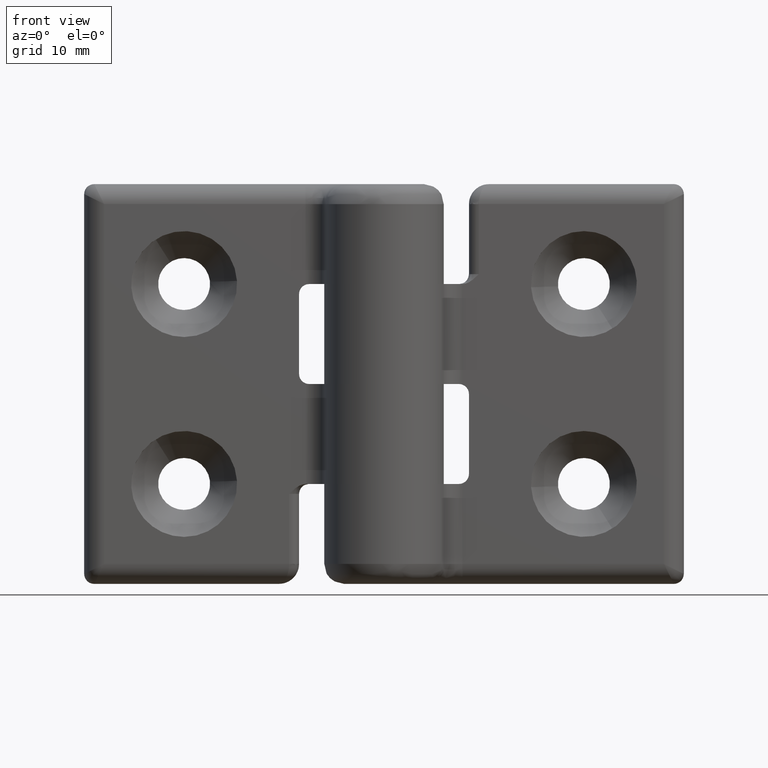
[diagram: clean part render]
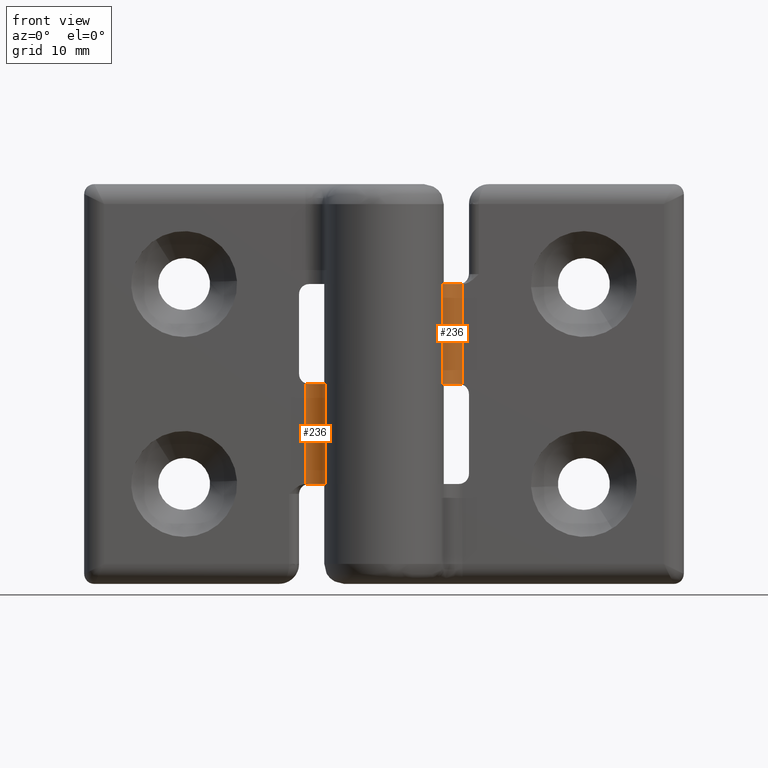
[diagram: same view with one multi-face feature highlighted, each face labeled with its STEP entity id]
A machine part, front view. The highlighted faces form ONE feature: a constant-radius fillet chain: 2 tangent blend faces with common blend radius 2 mm. The faces share edges in the B-rep.
Their STEP definitions:
[1] entity #236 (Cylinder):
#236=ADVANCED_FACE('',(#961),#960,.F.);
#960=CYLINDRICAL_SURFACE('',#1835,2.00000000000E+00);
#961=FACE_OUTER_BOUND('',#1836,.T.);
#1832=CARTESIAN_POINT('',(7.85811682275E+00,-1.50000000000E+00,1.96756500659E+01));
#1833=DIRECTION('',(-1.54976406833E-15,1.25070162390E-14,-1.00000000000E+00));
#1834=DIRECTION('',(-4.02525218605E-02,-9.99189538818E-01,-1.24344978758E-14));
#1835=AXIS2_PLACEMENT_3D('',#1832,#1833,#1834);
#1836=EDGE_LOOP('',(#2340,#2341,#2342,#2343,#2344,#2345));
#2340=ORIENTED_EDGE('',*,*,#2770,.F.);
#2341=ORIENTED_EDGE('',*,*,#2771,.F.);
#2342=ORIENTED_EDGE('',*,*,#2772,.F.);
#2343=ORIENTED_EDGE('',*,*,#2747,.T.);
#2344=ORIENTED_EDGE('',*,*,#2773,.F.);
#2345=ORIENTED_EDGE('',*,*,#2761,.T.);
#2747=EDGE_CURVE('',#4034,#4035,#4036,.T.);
#2761=EDGE_CURVE('',#4105,#4126,#4133,.T.);
#2770=EDGE_CURVE('',#4190,#4126,#4191,.T.);
#2771=EDGE_CURVE('',#4197,#4190,#4198,.T.);
#2772=EDGE_CURVE('',#4034,#4197,#4204,.T.);
#2773=EDGE_CURVE('',#4105,#4035,#4210,.T.);
#4034=VERTEX_POINT('',#5337);
#4035=VERTEX_POINT('',#5338);
#4036=(BOUNDED_CURVE() B_SPLINE_CURVE(3,(#5339,#5340,#5341,#5342,#5343,#5344,#5345,#5346),.UNSPECIFIED.,.F.,.F.) B_SPLINE_CURVE_WITH_KNOTS((4,2,2,4),(0.00000000000E+00,5.00000000000E-01,7.50000000000E-01,1.00000000000E+00),.UNSPECIFIED.) CURVE() GEOMETRIC_REPRESENTATION_ITEM() RATIONAL_B_SPLINE_CURVE((1.00000000000E+00,1.00000000000E+00,1.00000000000E+00,1.00000000000E+00,1.00000000000E+00,1.00000000000E+00,1.00000000000E+00,1.00000000000E+00)) REPRESENTATION_ITEM('') );
#4105=VERTEX_POINT('',#5392);
#4126=VERTEX_POINT('',#5420);
#4133=(BOUNDED_CURVE() B_SPLINE_CURVE(3,(#5425,#5426,#5427,#5428),.UNSPECIFIED.,.F.,.F.) B_SPLINE_CURVE_WITH_KNOTS((4,4),(0.00000000000E+00,1.00000000000E+00),.UNSPECIFIED.) CURVE() GEOMETRIC_REPRESENTATION_ITEM() RATIONAL_B_SPLINE_CURVE((1.00000000000E+00,1.00000000000E+00,1.00000000000E+00,1.00000000000E+00)) REPRESENTATION_ITEM('') );
#4190=VERTEX_POINT('',#5458);
#4191=CIRCLE('',#5462,2.00000000000E+00);
#4197=VERTEX_POINT('',#5463);
#4198=LINE('',#5464,#5465);
#4204=CIRCLE('',#5470,2.00000000000E+00);
#4210=LINE('',#5471,#5472);
#5337=CARTESIAN_POINT('',(7.50000000000E+00,4.67676889447E-01,2.00000000000E+01));
#5338=CARTESIAN_POINT('',(7.85811682275E+00,5.00000000000E-01,1.99336767863E+01));
#5339=CARTESIAN_POINT('',(7.50000000000E+00,4.67676889447E-01,2.00000000000E+01));
#5340=CARTESIAN_POINT('',(7.56085331587E+00,4.78752181457E-01,2.00000000000E+01));
#5341=CARTESIAN_POINT('',(7.62117930619E+00,4.86822086122E-01,1.99944896519E+01));
#5342=CARTESIAN_POINT('',(7.71084280297E+00,4.94795906919E-01,1.99779922471E+01));
#5343=CARTESIAN_POINT('',(7.74059198652E+00,4.96763833643E-01,1.99711131228E+01));
#5344=CARTESIAN_POINT('',(7.79979326351E+00,4.99368964677E-01,1.99544994502E+01));
#5345=CARTESIAN_POINT('',(7.82923863405E+00,5.00000000000E-01,1.99447531730E+01));
#5346=CARTESIAN_POINT('',(7.85811682275E+00,5.00000000000E-01,1.99336767863E+01));
#5392=CARTESIAN_POINT('',(7.85811682275E+00,5.00000000000E-01,3.00030122164E+01));
#5420=CARTESIAN_POINT('',(7.76909512818E+00,4.98017802197E-01,3.00000000000E+01));
#5425=CARTESIAN_POINT('',(7.85811682275E+00,5.00000000000E-01,3.00030122164E+01));
#5426=CARTESIAN_POINT('',(7.82846090792E+00,5.00000000000E-01,3.00010418751E+01));
#5427=CARTESIAN_POINT('',(7.79878825519E+00,4.99340779640E-01,3.00000000000E+01));
#5428=CARTESIAN_POINT('',(7.76909512818E+00,4.98017802197E-01,3.00000000000E+01));
#5458=CARTESIAN_POINT('',(5.89358761706E+00,-1.12500000000E+00,3.00000000000E+01));
#5459=CARTESIAN_POINT('',(7.85811682275E+00,-1.50000000000E+00,3.00000000000E+01));
#5460=DIRECTION('',(-6.84512296639E-15,2.03576194987E-15,-1.00000000000E+00));
#5461=DIRECTION('',(9.82264602844E-01,-1.87500000000E-01,-7.10542735760E-15));
#5462=AXIS2_PLACEMENT_3D('',#5459,#5460,#5461);
#5463=CARTESIAN_POINT('',(5.89358761706E+00,-1.12500000000E+00,2.00000000000E+01));
#5464=CARTESIAN_POINT('',(5.89358761706E+00,-1.12500000000E+00,2.00000000000E+01));
#5465=VECTOR('',#5466,1.00000000000E+01);
#5466=DIRECTION('',(0.00000000000E+00,0.00000000000E+00,1.00000000000E+00));
#5467=CARTESIAN_POINT('',(7.85811682275E+00,-1.50000000000E+00,2.00000000000E+01));
#5468=DIRECTION('',(-3.13550100445E-15,8.45702504603E-15,1.00000000000E+00));
#5469=DIRECTION('',(1.79058411376E-01,-9.83838444723E-01,8.88178419700E-15));
#5470=AXIS2_PLACEMENT_3D('',#5467,#5468,#5469);
#5471=CARTESIAN_POINT('',(7.85811682275E+00,5.00000000000E-01,3.00030122164E+01));
#5472=VECTOR('',#5473,1.00693354301E+01);
#5473=DIRECTION('',(0.00000000000E+00,0.00000000000E+00,-1.00000000000E+00));
[2] entity #236 (Cylinder):
#236=ADVANCED_FACE('',(#961),#960,.F.);
#960=CYLINDRICAL_SURFACE('',#1835,2.00000000000E+00);
#961=FACE_OUTER_BOUND('',#1836,.T.);
#1832=CARTESIAN_POINT('',(7.85811682275E+00,-1.50000000000E+00,1.96756500659E+01));
#1833=DIRECTION('',(-1.54976406833E-15,1.25070162390E-14,-1.00000000000E+00));
#1834=DIRECTION('',(-4.02525218605E-02,-9.99189538818E-01,-1.24344978758E-14));
#1835=AXIS2_PLACEMENT_3D('',#1832,#1833,#1834);
#1836=EDGE_LOOP('',(#2340,#2341,#2342,#2343,#2344,#2345));
#2340=ORIENTED_EDGE('',*,*,#2770,.F.);
#2341=ORIENTED_EDGE('',*,*,#2771,.F.);
#2342=ORIENTED_EDGE('',*,*,#2772,.F.);
#2343=ORIENTED_EDGE('',*,*,#2747,.T.);
#2344=ORIENTED_EDGE('',*,*,#2773,.F.);
#2345=ORIENTED_EDGE('',*,*,#2761,.T.);
#2747=EDGE_CURVE('',#4034,#4035,#4036,.T.);
#2761=EDGE_CURVE('',#4105,#4126,#4133,.T.);
#2770=EDGE_CURVE('',#4190,#4126,#4191,.T.);
#2771=EDGE_CURVE('',#4197,#4190,#4198,.T.);
#2772=EDGE_CURVE('',#4034,#4197,#4204,.T.);
#2773=EDGE_CURVE('',#4105,#4035,#4210,.T.);
#4034=VERTEX_POINT('',#5337);
#4035=VERTEX_POINT('',#5338);
#4036=(BOUNDED_CURVE() B_SPLINE_CURVE(3,(#5339,#5340,#5341,#5342,#5343,#5344,#5345,#5346),.UNSPECIFIED.,.F.,.F.) B_SPLINE_CURVE_WITH_KNOTS((4,2,2,4),(0.00000000000E+00,5.00000000000E-01,7.50000000000E-01,1.00000000000E+00),.UNSPECIFIED.) CURVE() GEOMETRIC_REPRESENTATION_ITEM() RATIONAL_B_SPLINE_CURVE((1.00000000000E+00,1.00000000000E+00,1.00000000000E+00,1.00000000000E+00,1.00000000000E+00,1.00000000000E+00,1.00000000000E+00,1.00000000000E+00)) REPRESENTATION_ITEM('') );
#4105=VERTEX_POINT('',#5392);
#4126=VERTEX_POINT('',#5420);
#4133=(BOUNDED_CURVE() B_SPLINE_CURVE(3,(#5425,#5426,#5427,#5428),.UNSPECIFIED.,.F.,.F.) B_SPLINE_CURVE_WITH_KNOTS((4,4),(0.00000000000E+00,1.00000000000E+00),.UNSPECIFIED.) CURVE() GEOMETRIC_REPRESENTATION_ITEM() RATIONAL_B_SPLINE_CURVE((1.00000000000E+00,1.00000000000E+00,1.00000000000E+00,1.00000000000E+00)) REPRESENTATION_ITEM('') );
#4190=VERTEX_POINT('',#5458);
#4191=CIRCLE('',#5462,2.00000000000E+00);
#4197=VERTEX_POINT('',#5463);
#4198=LINE('',#5464,#5465);
#4204=CIRCLE('',#5470,2.00000000000E+00);
#4210=LINE('',#5471,#5472);
#5337=CARTESIAN_POINT('',(7.50000000000E+00,4.67676889447E-01,2.00000000000E+01));
#5338=CARTESIAN_POINT('',(7.85811682275E+00,5.00000000000E-01,1.99336767863E+01));
#5339=CARTESIAN_POINT('',(7.50000000000E+00,4.67676889447E-01,2.00000000000E+01));
#5340=CARTESIAN_POINT('',(7.56085331587E+00,4.78752181457E-01,2.00000000000E+01));
#5341=CARTESIAN_POINT('',(7.62117930619E+00,4.86822086122E-01,1.99944896519E+01));
#5342=CARTESIAN_POINT('',(7.71084280297E+00,4.94795906919E-01,1.99779922471E+01));
#5343=CARTESIAN_POINT('',(7.74059198652E+00,4.96763833643E-01,1.99711131228E+01));
#5344=CARTESIAN_POINT('',(7.79979326351E+00,4.99368964677E-01,1.99544994502E+01));
#5345=CARTESIAN_POINT('',(7.82923863405E+00,5.00000000000E-01,1.99447531730E+01));
#5346=CARTESIAN_POINT('',(7.85811682275E+00,5.00000000000E-01,1.99336767863E+01));
#5392=CARTESIAN_POINT('',(7.85811682275E+00,5.00000000000E-01,3.00030122164E+01));
#5420=CARTESIAN_POINT('',(7.76909512818E+00,4.98017802197E-01,3.00000000000E+01));
#5425=CARTESIAN_POINT('',(7.85811682275E+00,5.00000000000E-01,3.00030122164E+01));
#5426=CARTESIAN_POINT('',(7.82846090792E+00,5.00000000000E-01,3.00010418751E+01));
#5427=CARTESIAN_POINT('',(7.79878825519E+00,4.99340779640E-01,3.00000000000E+01));
#5428=CARTESIAN_POINT('',(7.76909512818E+00,4.98017802197E-01,3.00000000000E+01));
#5458=CARTESIAN_POINT('',(5.89358761706E+00,-1.12500000000E+00,3.00000000000E+01));
#5459=CARTESIAN_POINT('',(7.85811682275E+00,-1.50000000000E+00,3.00000000000E+01));
#5460=DIRECTION('',(-6.84512296639E-15,2.03576194987E-15,-1.00000000000E+00));
#5461=DIRECTION('',(9.82264602844E-01,-1.87500000000E-01,-7.10542735760E-15));
#5462=AXIS2_PLACEMENT_3D('',#5459,#5460,#5461);
#5463=CARTESIAN_POINT('',(5.89358761706E+00,-1.12500000000E+00,2.00000000000E+01));
#5464=CARTESIAN_POINT('',(5.89358761706E+00,-1.12500000000E+00,2.00000000000E+01));
#5465=VECTOR('',#5466,1.00000000000E+01);
#5466=DIRECTION('',(0.00000000000E+00,0.00000000000E+00,1.00000000000E+00));
#5467=CARTESIAN_POINT('',(7.85811682275E+00,-1.50000000000E+00,2.00000000000E+01));
#5468=DIRECTION('',(-3.13550100445E-15,8.45702504603E-15,1.00000000000E+00));
#5469=DIRECTION('',(1.79058411376E-01,-9.83838444723E-01,8.88178419700E-15));
#5470=AXIS2_PLACEMENT_3D('',#5467,#5468,#5469);
#5471=CARTESIAN_POINT('',(7.85811682275E+00,5.00000000000E-01,3.00030122164E+01));
#5472=VECTOR('',#5473,1.00693354301E+01);
#5473=DIRECTION('',(0.00000000000E+00,0.00000000000E+00,-1.00000000000E+00));